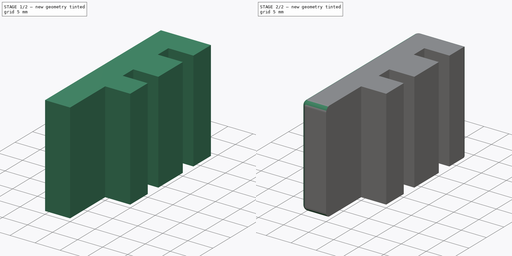
[diagram: build sequence overview — one tinted view per stage of 2, left to right]
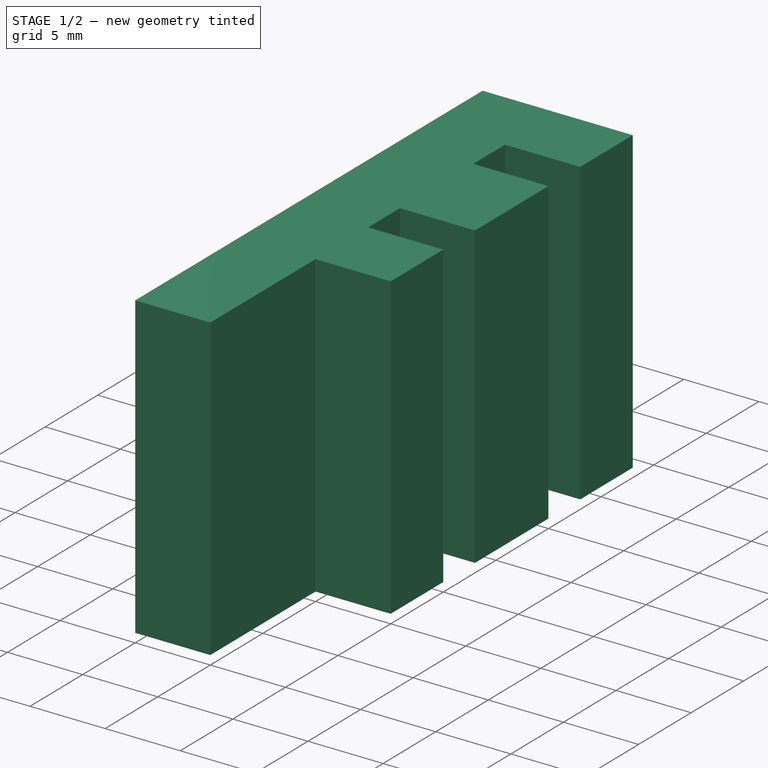
[diagram: stage 1 of 2 — iso view after this stage's code; geometry added in this stage tinted green]
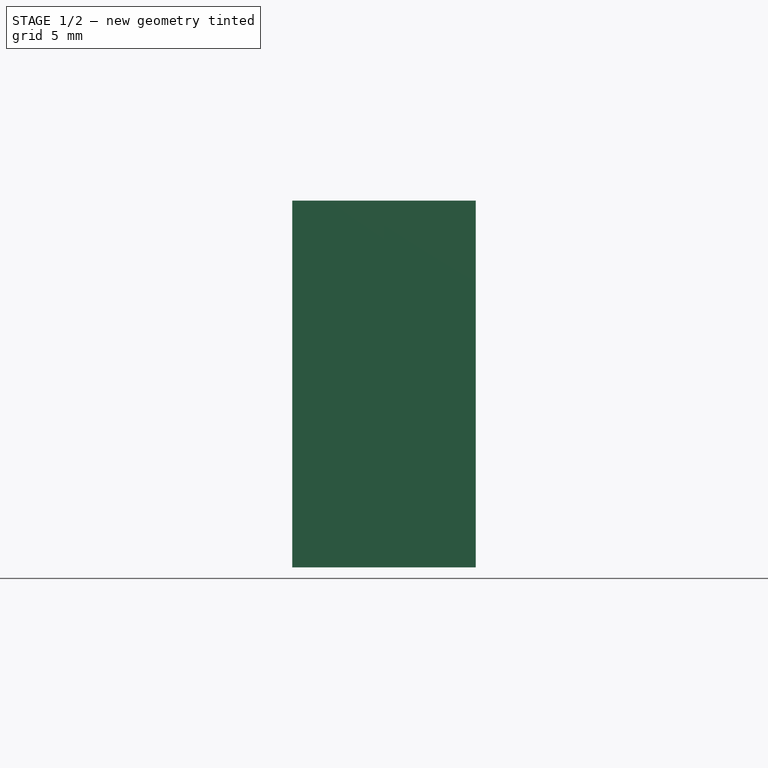
[diagram: stage 1 of 2 — front view after this stage's code; geometry added in this stage tinted green]
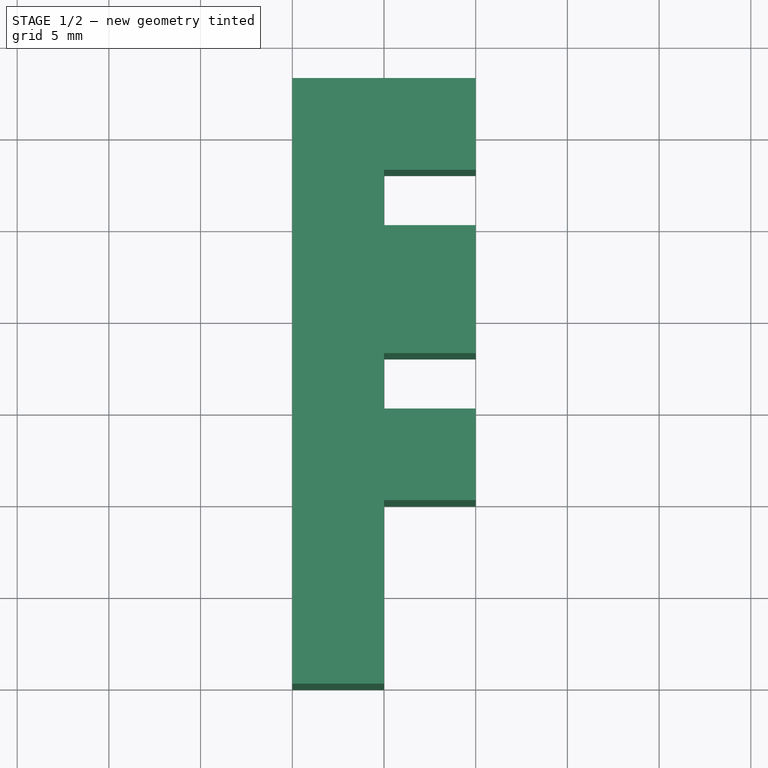
[diagram: stage 1 of 2 — top view after this stage's code; geometry added in this stage tinted green]
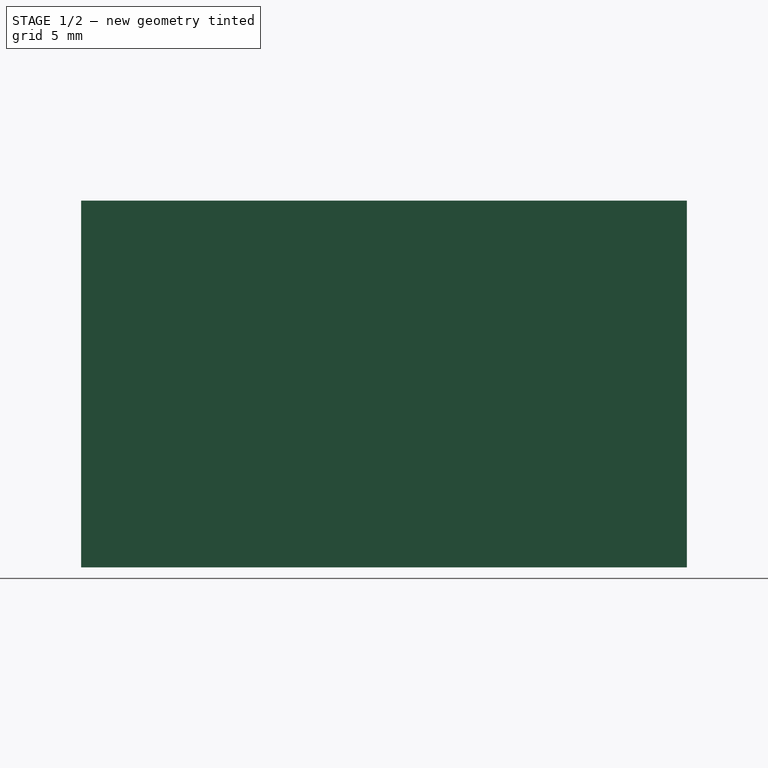
[diagram: stage 1 of 2 — right view after this stage's code; geometry added in this stage tinted green]
FCSTD DOCUMENT  (FreeCAD 1.0R39319 (Git))
Label: corner-vert-top-3
License: All rights reserved
LicenseURL: https://en.wikipedia.org/wiki/All_rights_reserved
objects: Sketcher::SketchObject×1, PartDesign::Pad×1, PartDesign::Fillet×1, PartDesign::Body×1
note: 9 computed .brp shape members not serialized (recipe doc carries the construction recipe); baked Part::Feature solids carry a one-line shape summary decoded from their .brp

FEATURE [Sketcher::SketchObject] Sketch
  ArcFitTolerance = 1e-06
  AttachmentSupport = -> [XY_Plane]
  FullyConstrained = false
  MakeInternals = false
  MapMode = 5
  sketch-geometry (14):
    g0: LineSegment StartX=0 StartY=0 StartZ=0 EndX=0 EndY=33.02 EndZ=0
    g1: LineSegment StartX=0 StartY=33.02 StartZ=0 EndX=10 EndY=33.02 EndZ=0
    g2: LineSegment StartX=10 StartY=33.02 StartZ=0 EndX=10 EndY=28.02 EndZ=0
    g3: LineSegment StartX=10 StartY=28.02 StartZ=0 EndX=5 EndY=28.02 EndZ=0
    g4: LineSegment StartX=5 StartY=28.02 StartZ=0 EndX=5 EndY=25 EndZ=0
    g5: LineSegment StartX=5 StartY=25 StartZ=0 EndX=10 EndY=25 EndZ=0
    g6: LineSegment StartX=10 StartY=25 StartZ=0 EndX=10 EndY=18.02 EndZ=0
    g7: LineSegment StartX=10 StartY=15 StartZ=0 EndX=5 EndY=15 EndZ=0
    g8: LineSegment StartX=5 StartY=15 StartZ=0 EndX=5 EndY=18.02 EndZ=0
    g9: LineSegment StartX=5 StartY=18.02 StartZ=0 EndX=10 EndY=18.02 EndZ=0
    g10: LineSegment StartX=10 StartY=15 StartZ=0 EndX=10 EndY=10 EndZ=0
    g11: LineSegment StartX=5 StartY=10 StartZ=0 EndX=5 EndY=0 EndZ=0
    g12: LineSegment StartX=5 StartY=0 StartZ=0 EndX=0 EndY=0 EndZ=0
    g13: LineSegment StartX=5 StartY=10 StartZ=0 EndX=10 EndY=10 EndZ=0
  constraints (39):
    c: Coincident(g-1,g0)
    c: Coincident(g0,g1)
    c: Horizontal(g1)
    c: Coincident(g1,g2)
    c: Vertical(g2)
    c: Coincident(g2,g3)
    c: Horizontal(g3)
    c: Coincident(g3,g4)
    c: Vertical(g4)
    c: Coincident(g4,g5)
    c: Horizontal(g5)
    c: Coincident(g5,g6)
    c: Vertical(g6)
    c: Coincident(g7,g8)
    c: Vertical(g8)
    c: Coincident(g8,g9)
    c: Horizontal(g9)
    c: Vertical(g10)
    c: Parallel(g0,g-2)
    c: DistanceX(g3,g2) = 5
    c: Equal(g3,g5)
    c: Equal(g3,g7)
    c: Equal(g3,g9)
    c: DistanceY(g4,g3) = 3.02
    c: Equal(g4,g8)
    c: Parallel(g9,g7)
    c: DistanceY(g7,g5) = 10
    c: DistanceY(g2,g1) = 5
    c: Parallel(g11,g-2)
    c: Coincident(g11,g12)
    c: Coincident(g12,g0)
    c: Horizontal(g12)
    c: DistanceX(g0,g11) = 5
    c: Horizontal(g13)
    c: Coincident(g10,g13)
    c: Coincident(g13,g11)
    c: DistanceY(g11,g11) = 10
    c: DistanceY(g10,g7) = 5
    c: DistanceX(g11,g10) = 5
FEATURE [PartDesign::Pad] Pad
  Direction = (0,0,1)
  Length = 20
  Length2 = 10
  Profile = -> Sketch
  ReferenceAxis = -> Sketch [N_Axis]
  Refine = true
  Suppressed = false
  Type = 0
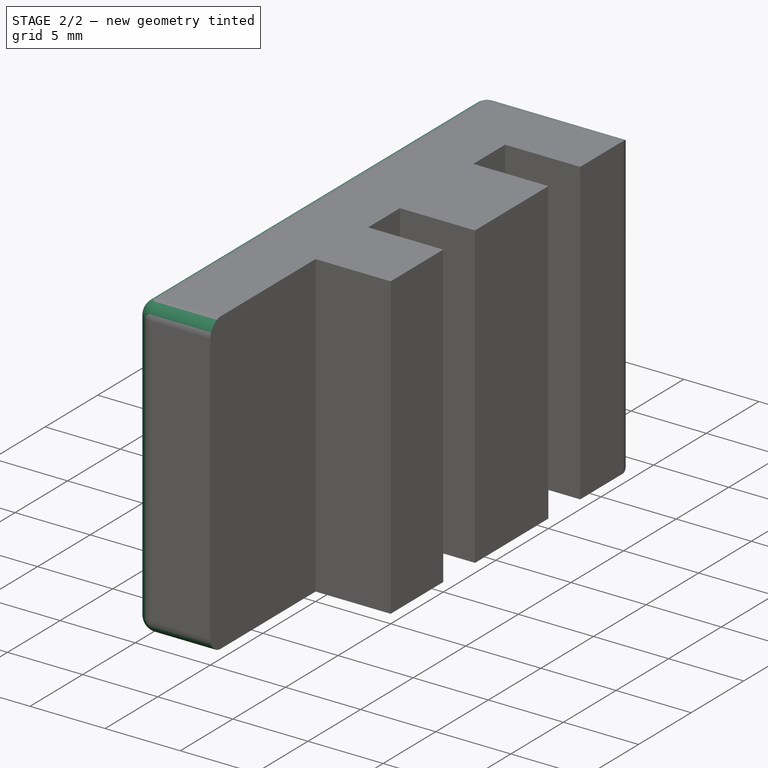
[diagram: stage 2 of 2 — iso view after this stage's code; geometry added in this stage tinted green]
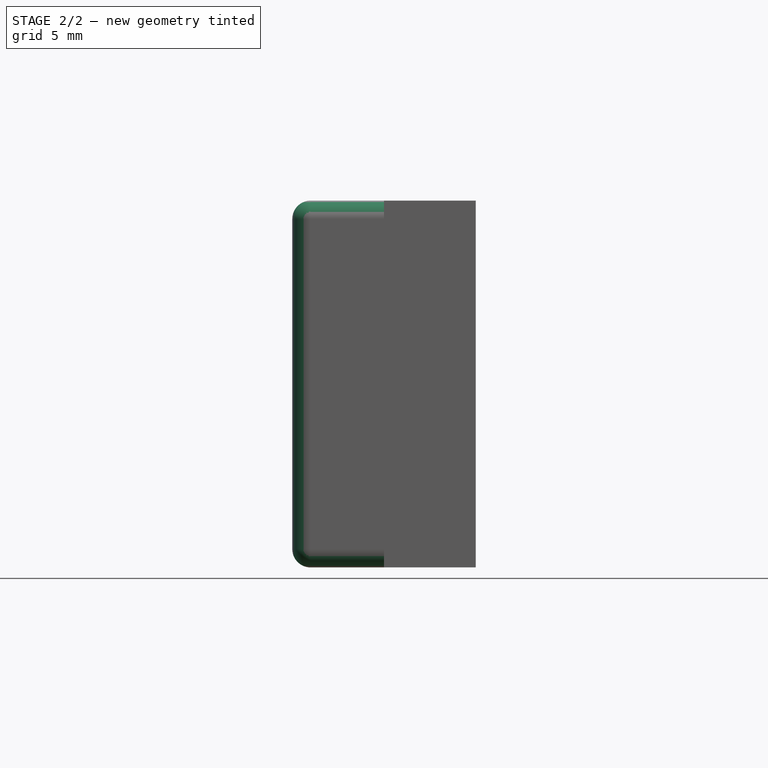
[diagram: stage 2 of 2 — front view after this stage's code; geometry added in this stage tinted green]
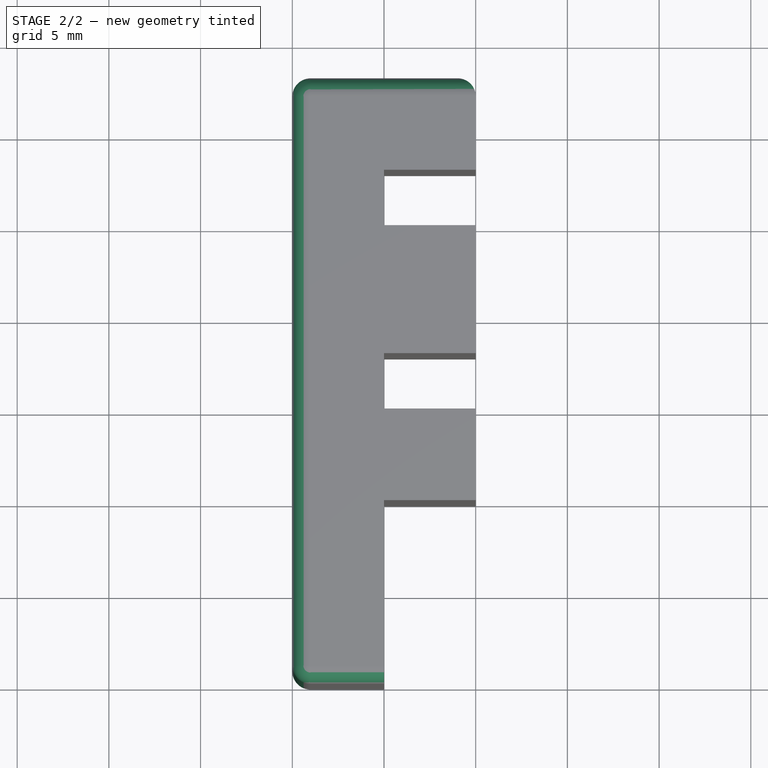
[diagram: stage 2 of 2 — top view after this stage's code; geometry added in this stage tinted green]
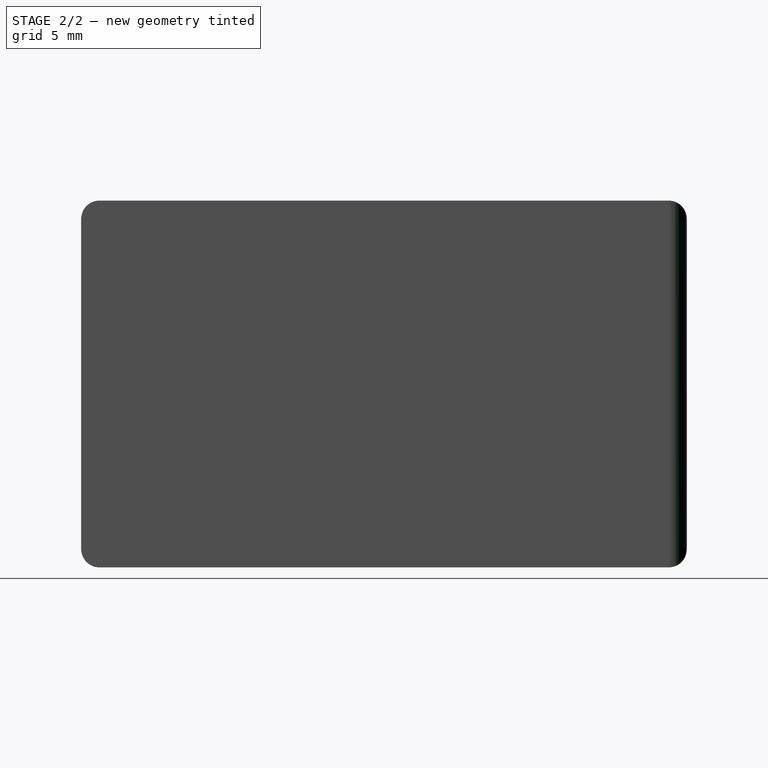
[diagram: stage 2 of 2 — right view after this stage's code; geometry added in this stage tinted green]
FEATURE [PartDesign::Fillet] Fillet
  Base = -> Pad [Face4,Face3,Edge6,Edge7]
  BaseFeature = -> Pad
  Radius = 1
  Refine = true
  SupportTransform = false
  Suppressed = false
  UseAllEdges = false
FEATURE [PartDesign::Body] Body
  AllowCompound = false
  Group = -> [Sketch,Pad,Fillet]
  Origin = -> Origin
  Tip = -> Fillet
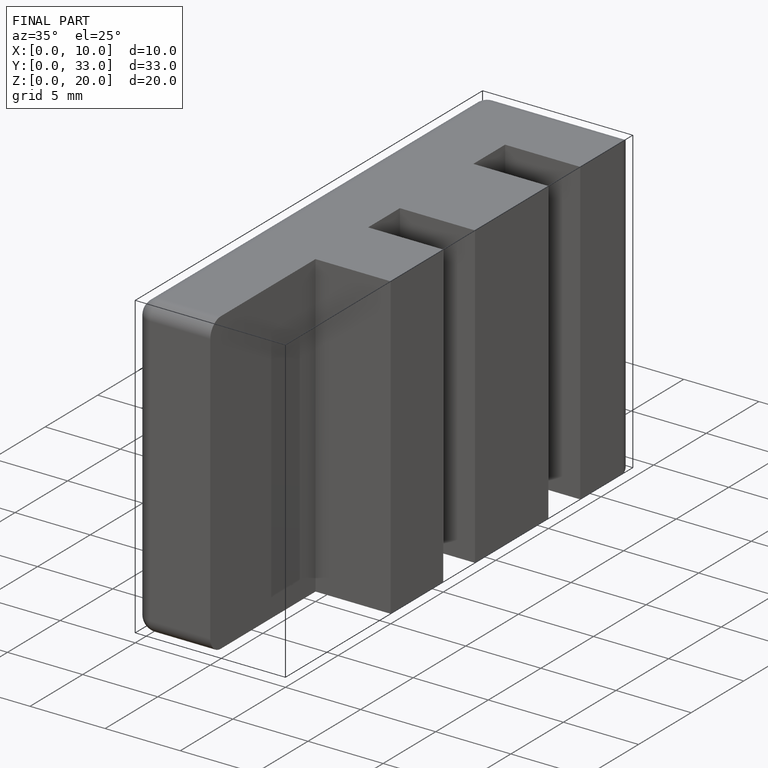
[diagram: finished part — iso view with bounding-box wireframe]
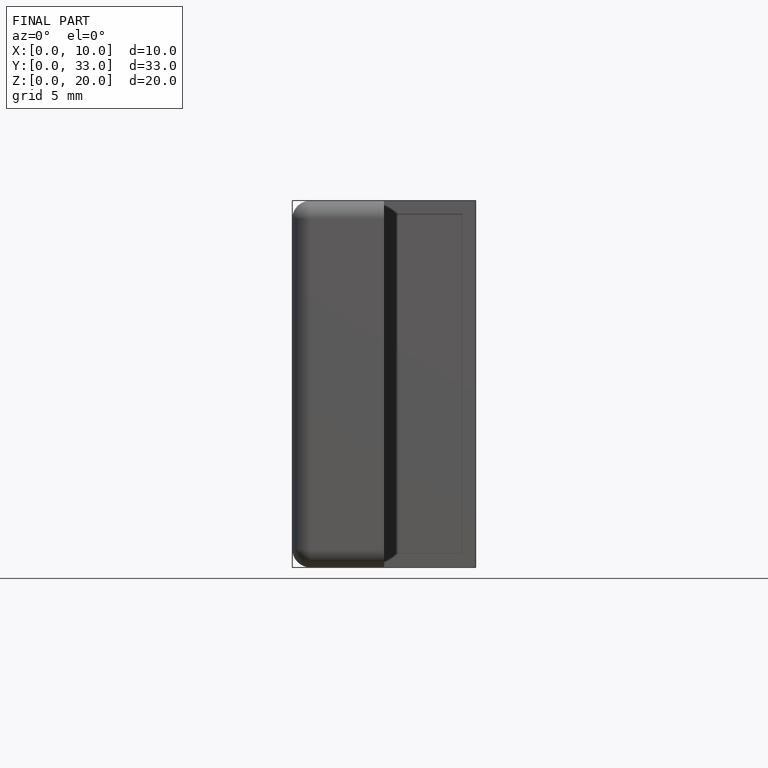
[diagram: finished part — front view with bounding-box wireframe]
